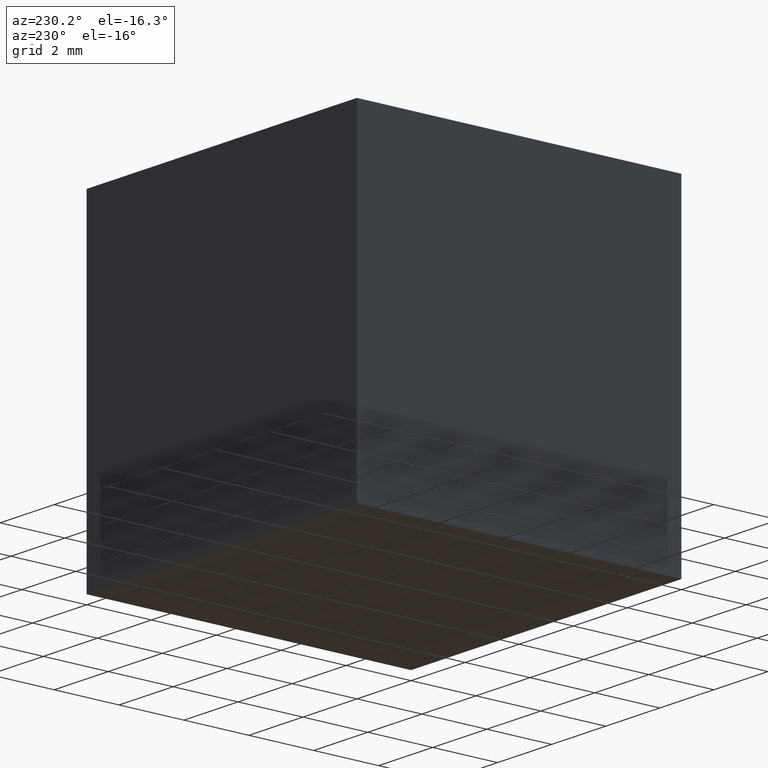
[diagram: clean part render]
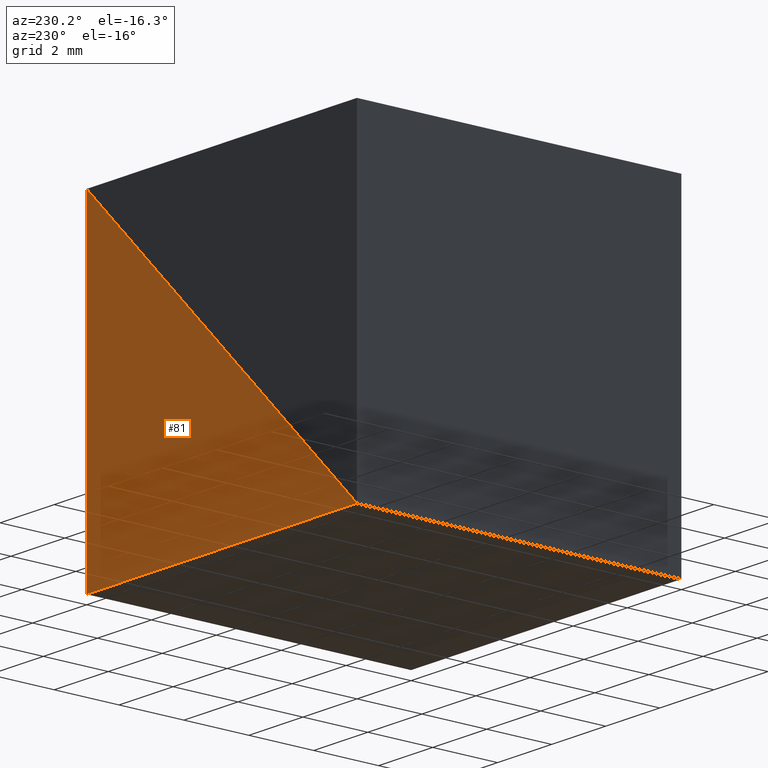
[diagram: same view with one face highlighted and labeled with its STEP entity id]
A machine part, auxiliary view. The second image highlights one B-rep face of the part: STEP entity #81.
In plain terms, the highlighted planar face has unit normal (-0, 1, 0).
Its self-contained STEP definition (entity closure, byte-faithful):
#12 = LINE ( 'NONE', #239, #129 ) ;
#18 = LINE ( 'NONE', #146, #126 ) ;
#26 = CARTESIAN_POINT ( 'NONE',  ( 0.0000000000000000000, 10.00000000000000000, -10.00000000000000000 ) ) ;
#28 = DIRECTION ( 'NONE',  ( 0.7071067811865476800, 0.0000000000000000000, 0.7071067811865474600 ) ) ;
#44 = DIRECTION ( 'NONE',  ( -1.000000000000000000, 0.0000000000000000000, 3.469446951953614200E-016 ) ) ;
#66 = ORIENTED_EDGE ( 'NONE', *, *, #116, .T. ) ;
#80 = VERTEX_POINT ( 'NONE', #290 ) ;
#81 = ADVANCED_FACE ( 'NONE', ( #144 ), #270, .T. ) ;
#108 = EDGE_LOOP ( 'NONE', ( #186, #66, #130 ) ) ;
#115 = CARTESIAN_POINT ( 'NONE',  ( 0.0000000000000000000, 10.00000000000000000, 0.0000000000000000000 ) ) ;
#116 = EDGE_CURVE ( 'NONE', #263, #80, #18, .T. ) ;
#126 = VECTOR ( 'NONE', #217, 1000.000000000000000 ) ;
#129 = VECTOR ( 'NONE', #28, 1000.000000000000000 ) ;
#130 = ORIENTED_EDGE ( 'NONE', *, *, #185, .T. ) ;
#144 = FACE_OUTER_BOUND ( 'NONE', #108, .T. ) ;
#146 = CARTESIAN_POINT ( 'NONE',  ( 0.0000000000000000000, 10.00000000000000000, 0.0000000000000000000 ) ) ;
#147 = EDGE_CURVE ( 'NONE', #177, #263, #12, .T. ) ;
#148 = DIRECTION ( 'NONE',  ( -0.0000000000000000000, 1.000000000000000000, 0.0000000000000000000 ) ) ;
#151 = AXIS2_PLACEMENT_3D ( 'NONE', #115, #148, #170 ) ;
#170 = DIRECTION ( 'NONE',  ( 0.0000000000000000000, -0.0000000000000000000, 1.000000000000000000 ) ) ;
#173 = VECTOR ( 'NONE', #44, 1000.000000000000000 ) ;
#177 = VERTEX_POINT ( 'NONE', #283 ) ;
#185 = EDGE_CURVE ( 'NONE', #80, #177, #238, .T. ) ;
#186 = ORIENTED_EDGE ( 'NONE', *, *, #147, .T. ) ;
#208 = CARTESIAN_POINT ( 'NONE',  ( 0.0000000000000000000, 10.00000000000000000, 0.0000000000000000000 ) ) ;
#217 = DIRECTION ( 'NONE',  ( 0.0000000000000000000, 0.0000000000000000000, -1.000000000000000000 ) ) ;
#238 = LINE ( 'NONE', #26, #173 ) ;
#239 = CARTESIAN_POINT ( 'NONE',  ( -10.00000000000000000, 10.00000000000000000, -9.999999999999996400 ) ) ;
#263 = VERTEX_POINT ( 'NONE', #208 ) ;
#270 = PLANE ( 'NONE',  #151 ) ;
#283 = CARTESIAN_POINT ( 'NONE',  ( -10.00000000000000000, 10.00000000000000000, -9.999999999999996400 ) ) ;
#290 = CARTESIAN_POINT ( 'NONE',  ( 0.0000000000000000000, 10.00000000000000000, -10.00000000000000000 ) ) ;